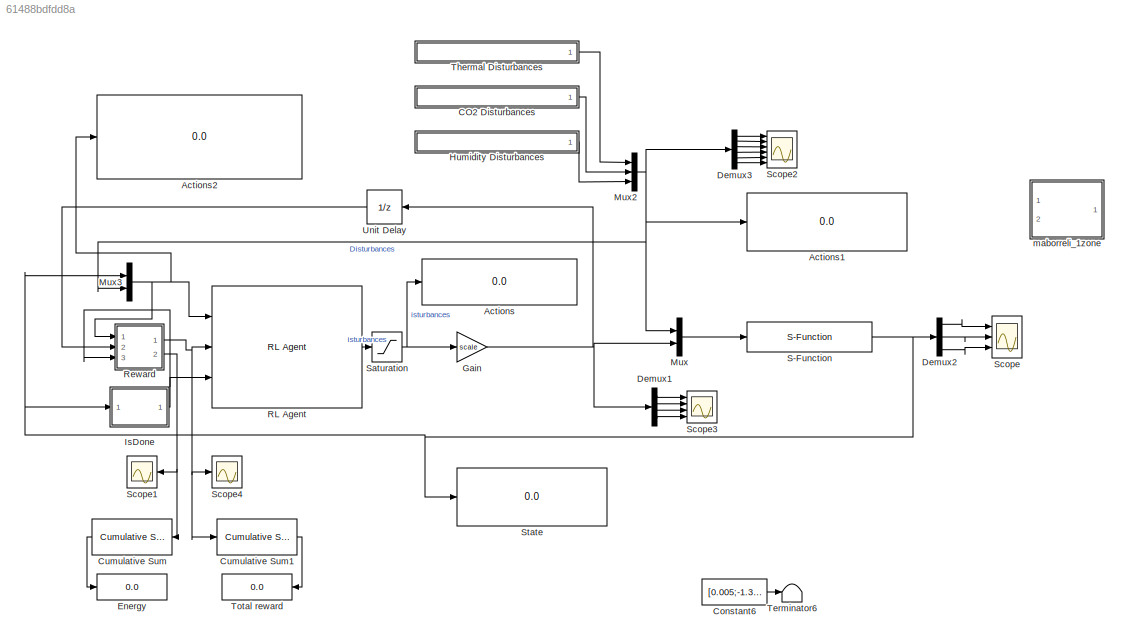
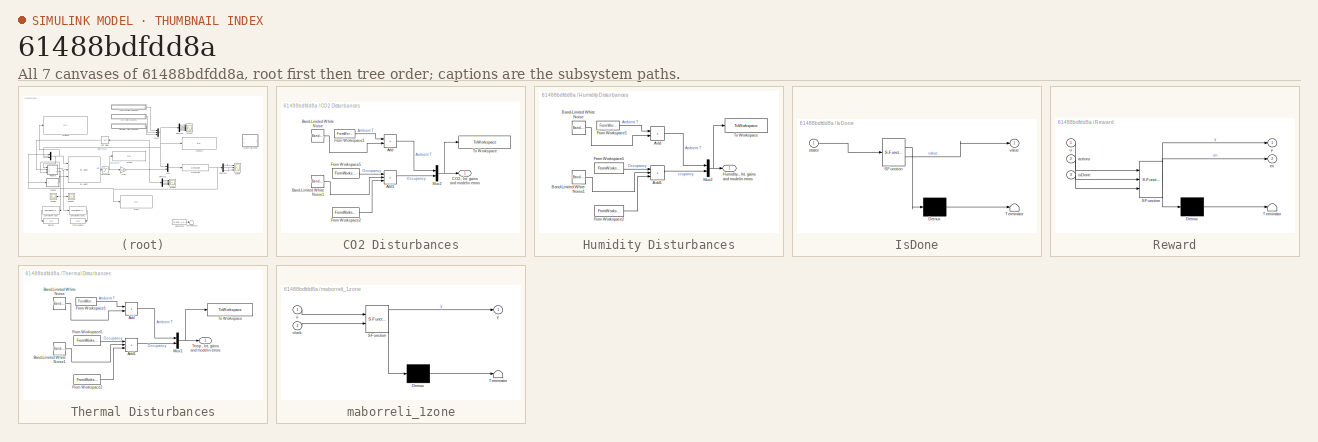
[diagram: thumbnail index - all 7 canvases of the model, root first then tree order]
MODEL slx_61488bdfdd8a
KIND model
CONFIG AbsTol = auto
CONFIG EnableMultiTasking = on
CONFIG FixedStep = 2
CONFIG MaxStep = auto
CONFIG MinStep = auto
CONFIG RelTol = 1e-3
CONFIG SampleTimeConstraint = Unconstrained
CONFIG SolverName = ode45
CONFIG StartTime = 0.0
CONFIG StopTime = 3600*24*3
BLOCK [Display] Actions
  Decimation = 1
  Ports = [1]
BLOCK [Display] Actions1
  Decimation = 1
  Ports = [1]
BLOCK [Display] Actions2
  Decimation = 1
  Ports = [1]
BLOCK [SubSystem] CO2 Disturbances
  Ports = [0, 1]
  RequestExecContextInheritance = off
  TreatAsAtomicUnit = on
BLOCK [Sum] CO2 Disturbances/Add
  IconShape = rectangular
  Ports = [2, 1]
BLOCK [Sum] CO2 Disturbances/Add1
  IconShape = rectangular
  Inputs = +++
  Ports = [3, 1]
BLOCK [Reference] CO2 Disturbances/Band-Limited White Noise  REF=simulink/Sources/Band-Limited
White Noise
  Ports = [0, 1]
  SourceBlock = simulink/Sources/Band-Limited\nWhite Noise
  SourceProductBaseCode = SL
  SourceType = Band-Limited White Noise.
BLOCK [Reference] CO2 Disturbances/Band-Limited White Noise1  REF=simulink/Sources/Band-Limited
White Noise
  Ports = [0, 1]
  SourceBlock = simulink/Sources/Band-Limited\nWhite Noise
  SourceProductBaseCode = SL
  SourceType = Band-Limited White Noise.
BLOCK [Outport] CO2 Disturbances/CO2., Int. gains and modelin errors
BLOCK [FromWorkspace] CO2 Disturbances/From Workspace1
  OutDataTypeStr = double
  SampleTime = Ts
  VariableName = CO2s_struct
  ZeroCross = off
BLOCK [FromWorkspace] CO2 Disturbances/From Workspace2
  OutDataTypeStr = double
  SampleTime = Ts
  VariableName = CO2w_struct
  ZeroCross = off
BLOCK [FromWorkspace] CO2 Disturbances/From Workspace5
  OutDataTypeStr = double
  SampleTime = Ts
  VariableName = CO2gens_struct
  ZeroCross = off
BLOCK [Mux] CO2 Disturbances/Mux2
  DisplayOption = bar
  Inputs = 2
  Ports = [2, 1]
BLOCK [ToWorkspace] CO2 Disturbances/To Workspace
  Commented = on
  FixptAsFi = on
  MaxDataPoints = inf
  Ports = [1]
  SampleTime = id.Delta
  SaveFormat = Timeseries
  VariableName = dist_CO2_forid
BLOCK [Constant] Constant6
  Value = [0.005;-1.332;0.8]
BLOCK [Reference] Cumulative Sum  REF=dspmathops/Cumulative
Sum
  Ports = [1, 1]
  SourceBlock = dspmathops/Cumulative\nSum
  SourceProductBaseCode = DS
  SourceType = Cumulative Sum
  UserDataPersistent = on
BLOCK [Reference] Cumulative Sum1  REF=dspmathops/Cumulative
Sum
  Ports = [1, 1]
  SourceBlock = dspmathops/Cumulative\nSum
  SourceProductBaseCode = DS
  SourceType = Cumulative Sum
  UserDataPersistent = on
BLOCK [Demux] Demux1
  Ports = [1, 4]
BLOCK [Demux] Demux2
  Outputs = 5
  Ports = [1, 5]
BLOCK [Demux] Demux3
  Outputs = 6
  Ports = [1, 6]
BLOCK [Display] Energy
  Decimation = 1
  Ports = [1]
BLOCK [Gain] Gain
  Gain = scale
BLOCK [SubSystem] Humidity Disturbances
  Ports = [0, 1]
  RequestExecContextInheritance = off
  TreatAsAtomicUnit = on
BLOCK [Sum] Humidity Disturbances/Add
  IconShape = rectangular
  Ports = [2, 1]
BLOCK [Sum] Humidity Disturbances/Add1
  IconShape = rectangular
  Inputs = +++
  Ports = [3, 1]
BLOCK [Reference] Humidity Disturbances/Band-Limited White Noise  REF=simulink/Sources/Band-Limited
White Noise
  Ports = [0, 1]
  SourceBlock = simulink/Sources/Band-Limited\nWhite Noise
  SourceProductBaseCode = SL
  SourceType = Band-Limited White Noise.
BLOCK [Reference] Humidity Disturbances/Band-Limited White Noise1  REF=simulink/Sources/Band-Limited
White Noise
  Ports = [0, 1]
  SourceBlock = simulink/Sources/Band-Limited\nWhite Noise
  SourceProductBaseCode = SL
  SourceType = Band-Limited White Noise.
BLOCK [FromWorkspace] Humidity Disturbances/From Workspace1
  OutDataTypeStr = double
  SampleTime = Ts
  VariableName = Hs_struct
  ZeroCross = off
BLOCK [FromWorkspace] Humidity Disturbances/From Workspace2
  OutDataTypeStr = double
  SampleTime = Ts
  VariableName = Hw_struct
  ZeroCross = off
BLOCK [FromWorkspace] Humidity Disturbances/From Workspace5
  OutDataTypeStr = double
  SampleTime = Ts
  VariableName = Hgens_struct
  ZeroCross = off
BLOCK [Outport] Humidity Disturbances/Humidity., Int. gains and modelin errors
BLOCK [Mux] Humidity Disturbances/Mux2
  DisplayOption = bar
  Inputs = 2
  Ports = [2, 1]
BLOCK [ToWorkspace] Humidity Disturbances/To Workspace
  Commented = on
  FixptAsFi = on
  MaxDataPoints = inf
  Ports = [1]
  SampleTime = id.Delta
  SaveFormat = Timeseries
  VariableName = dist_humidities_forid
BLOCK [SubSystem] IsDone
  ErrorFcn = Stateflow.Translate.translate
  PermitHierarchicalResolution = ExplicitOnly
  Ports = [1, 1]
  RequestExecContextInheritance = off
  SFBlockType = MATLAB Function
  SystemSampleTime = Ts2
  TreatAsAtomicUnit = on
BLOCK [Demux] IsDone/ Demux 
  Outputs = 1
  Ports = [1, 1]
BLOCK [S-Function] IsDone/ SFunction 
  EnableBusSupport = on
  FunctionName = sf_sfun
  PortCounts = [1 2]
  Ports = [1, 2]
  SFcnIsStateOwnerBlock = off
  SFunctionDeploymentMode = off
  Tag = Stateflow S-Function 1
BLOCK [Terminator] IsDone/ Terminator 
BLOCK [Inport] IsDone/states
BLOCK [Outport] IsDone/value
BLOCK [Mux] Mux
  DisplayOption = bar
  Inputs = 2
  Ports = [2, 1]
BLOCK [Mux] Mux2
  DisplayOption = bar
  Inputs = 3
  Ports = [3, 1]
BLOCK [Mux] Mux3
  DisplayOption = bar
  Inputs = 2
  Ports = [2, 1]
BLOCK [Reference] RL Agent  REF=rllib/RL Agent
  Ports = [3, 1]
  SourceBlock = rllib/RL Agent
  SourceProductBaseCode = RL
  SourceType = RL Agent
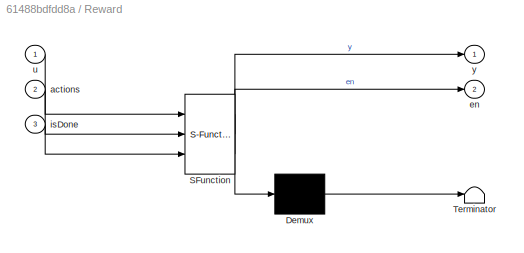
BLOCK [SubSystem] Reward
  ErrorFcn = Stateflow.Translate.translate
  PermitHierarchicalResolution = ExplicitOnly
  Ports = [3, 2]
  RequestExecContextInheritance = off
  SFBlockType = MATLAB Function
  SystemSampleTime = Ts2
  TreatAsAtomicUnit = on
BLOCK [Demux] Reward/ Demux 
  Outputs = 1
  Ports = [1, 1]
BLOCK [S-Function] Reward/ SFunction 
  EnableBusSupport = on
  FunctionName = sf_sfun
  Parameters = CO2_max,beta,high,low,params
  PortCounts = [3 3]
  Ports = [3, 3]
  SFcnIsStateOwnerBlock = off
  SFunctionDeploymentMode = off
  Tag = Stateflow S-Function 2
BLOCK [Terminator] Reward/ Terminator 
BLOCK [Inport] Reward/actions
  Port = 2
BLOCK [Outport] Reward/en
  Port = 2
BLOCK [Inport] Reward/isDone
  Port = 3
BLOCK [Inport] Reward/u
BLOCK [Outport] Reward/y
BLOCK [S-Function] S-Function
  EnableBusSupport = off
  FunctionName = maborrelli_sfunc_1zone_tch
  Parameters = ci,params1,Ts
  Ports = [1, 1]
  SFcnIsStateOwnerBlock = off
  SFunctionDeploymentMode = off
BLOCK [Saturate] Saturation
  LowerLimit = 0
  UpperLimit = 1
BLOCK [Scope] Scope
  Floating = off
  NumInputPorts = 3
  Ports = [3]
  ScopeSpecificationString = Simulink.scopes.TimeScopeBlockCfg('CurrentConfiguration', extmgr.ConfigurationSet(extmgr.Configuration('Core','General UI',true),extmgr.Configuration('Core','Source UI',true),extmgr.Configuration('Sources','WiredSimulink',true,'DataLoggingVariableName','states','DataLoggingSaveFormat','Structure','DataLoggingDecimation','1','DataLoggingDecimateData',true),extmgr.Configuration('Visuals','Time Domai...<+3061ch>
BLOCK [Scope] Scope1
  Floating = off
  NumInputPorts = 1
  Ports = [1]
  ScopeSpecificationString = Simulink.scopes.TimeScopeBlockCfg('CurrentConfiguration', extmgr.ConfigurationSet(extmgr.Configuration('Core','General UI',true),extmgr.Configuration('Core','Source UI',true),extmgr.Configuration('Sources','WiredSimulink',true,'DataLoggingVariableName','ScopeData1','DataLoggingSaveFormat','StructureWithTime','DataLoggingDecimation','1','DataLoggingDecimateData',true),extmgr.Configuration('Visuals'...<+1806ch>
BLOCK [Scope] Scope2
  Floating = off
  NumInputPorts = 6
  Ports = [6]
  ScopeSpecificationString = Simulink.scopes.TimeScopeBlockCfg('CurrentConfiguration', extmgr.ConfigurationSet(extmgr.Configuration('Core','General UI',true),extmgr.Configuration('Core','Source UI',true),extmgr.Configuration('Sources','WiredSimulink',true,'DataLoggingVariableName','ScopeData1','DataLoggingSaveFormat','StructureWithTime','DataLoggingDecimation','1','DataLoggingDecimateData',true),extmgr.Configuration('Visuals'...<+5121ch>
BLOCK [Scope] Scope3
  Floating = off
  NumInputPorts = 4
  Ports = [4]
  ScopeSpecificationString = Simulink.scopes.TimeScopeBlockCfg('CurrentConfiguration', extmgr.ConfigurationSet(extmgr.Configuration('Core','General UI',true),extmgr.Configuration('Core','Source UI',true),extmgr.Configuration('Sources','WiredSimulink',true,'DataLoggingVariableName','inputs','DataLoggingSaveFormat','StructureWithTime','DataLoggingDecimation','1','DataLoggingDecimateData',true),extmgr.Configuration('Visuals','Ti...<+3876ch>
BLOCK [Scope] Scope4
  Floating = off
  NumInputPorts = 1
  Ports = [1]
  ScopeSpecificationString = Simulink.scopes.TimeScopeBlockCfg('CurrentConfiguration', extmgr.ConfigurationSet(extmgr.Configuration('Core','General UI',true),extmgr.Configuration('Core','Source UI',true),extmgr.Configuration('Sources','WiredSimulink',true,'DataLoggingVariableName','T3','DataLoggingSaveFormat','StructureWithTime','DataLoggingDecimation','1','DataLoggingDecimateData',true),extmgr.Configuration('Visuals','Time D...<+1787ch>
BLOCK [Display] State
  Decimation = 1
  Ports = [1]
BLOCK [Terminator] Terminator6
BLOCK [SubSystem] Thermal Disturbances
  Ports = [0, 1]
  RequestExecContextInheritance = off
  TreatAsAtomicUnit = on
BLOCK [Sum] Thermal Disturbances/Add
  IconShape = rectangular
  Ports = [2, 1]
BLOCK [Sum] Thermal Disturbances/Add1
  IconShape = rectangular
  Inputs = +++
  Ports = [3, 1]
BLOCK [Reference] Thermal Disturbances/Band-Limited White Noise  REF=simulink/Sources/Band-Limited
White Noise
  Ports = [0, 1]
  SourceBlock = simulink/Sources/Band-Limited\nWhite Noise
  SourceProductBaseCode = SL
  SourceType = Band-Limited White Noise.
BLOCK [Reference] Thermal Disturbances/Band-Limited White Noise1  REF=simulink/Sources/Band-Limited
White Noise
  Ports = [0, 1]
  SourceBlock = simulink/Sources/Band-Limited\nWhite Noise
  SourceProductBaseCode = SL
  SourceType = Band-Limited White Noise.
BLOCK [FromWorkspace] Thermal Disturbances/From Workspace1
  OutDataTypeStr = double
  SampleTime = Ts
  VariableName = Ts_struct
  ZeroCross = off
BLOCK [FromWorkspace] Thermal Disturbances/From Workspace2
  OutDataTypeStr = double
  SampleTime = Ts
  VariableName = w_struct
  ZeroCross = off
BLOCK [FromWorkspace] Thermal Disturbances/From Workspace5
  OutDataTypeStr = double
  SampleTime = Ts
  VariableName = Pds_struct
  ZeroCross = off
BLOCK [Mux] Thermal Disturbances/Mux2
  DisplayOption = bar
  Inputs = 2
  Ports = [2, 1]
BLOCK [Outport] Thermal Disturbances/Temp., Int. gains and modelin errors
BLOCK [ToWorkspace] Thermal Disturbances/To Workspace
  Commented = on
  FixptAsFi = on
  MaxDataPoints = inf
  Ports = [1]
  SampleTime = id.Delta
  SaveFormat = Timeseries
  VariableName = dist_temperatures_forid
BLOCK [Display] Total reward
  Decimation = 1
  Ports = [1]
BLOCK [UnitDelay] Unit Delay
  HasFrameUpgradeWarning = on
  SampleTime = Ts2
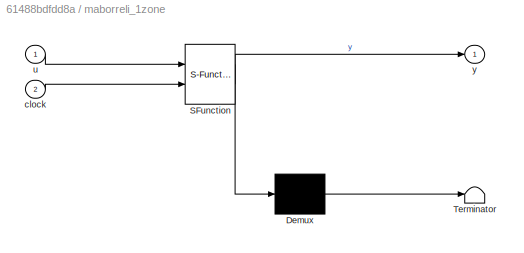
BLOCK [SubSystem] maborreli_1zone
  Commented = on
  ErrorFcn = Stateflow.Translate.translate
  PermitHierarchicalResolution = ExplicitOnly
  Ports = [2, 1]
  RequestExecContextInheritance = off
  SFBlockType = MATLAB Function
  SystemSampleTime = Ts
  TreatAsAtomicUnit = on
BLOCK [Demux] maborreli_1zone/ Demux 
  Outputs = 1
  Ports = [1, 1]
BLOCK [S-Function] maborreli_1zone/ SFunction 
  EnableBusSupport = on
  FunctionName = sf_sfun
  Parameters = Ts,ci,params1
  PortCounts = [2 2]
  Ports = [2, 2]
  SFcnIsStateOwnerBlock = off
  SFunctionDeploymentMode = off
  Tag = Stateflow S-Function 3
BLOCK [Terminator] maborreli_1zone/ Terminator 
BLOCK [Inport] maborreli_1zone/clock
  Port = 2
BLOCK [Inport] maborreli_1zone/u
BLOCK [Outport] maborreli_1zone/y
LINE CO2 Disturbances/Add1:1 -> CO2 Disturbances/Mux2:2
LINE CO2 Disturbances/Add:1 -> CO2 Disturbances/Mux2:1
LINE CO2 Disturbances/Band-Limited White Noise1:1 -> CO2 Disturbances/Add1:2
LINE CO2 Disturbances/Band-Limited White Noise:1 -> CO2 Disturbances/Add:2
LINE CO2 Disturbances/From Workspace1:1 -> CO2 Disturbances/Add:1
LINE CO2 Disturbances/From Workspace2:1 -> CO2 Disturbances/Add1:3
LINE CO2 Disturbances/From Workspace5:1 -> CO2 Disturbances/Add1:1
NET CO2 Disturbances/Mux2:1 -> CO2 Disturbances/CO2., Int. gains and modelin errors:1, CO2 Disturbances/To Workspace:1
LINE CO2 Disturbances:1 -> Mux2:2
LINE Constant6:1 -> Terminator6:1
LINE Cumulative Sum1:1 -> Total reward:1
LINE Cumulative Sum:1 -> Energy:1
LINE Demux1:1 -> Scope3:1
LINE Demux1:2 -> Scope3:2
LINE Demux1:3 -> Scope3:3
LINE Demux1:4 -> Scope3:4
LINE Demux2:1 -> Scope:1
LINE Demux2:3 -> Scope:2
LINE Demux2:5 -> Scope:3
LINE Demux3:1 -> Scope2:1
LINE Demux3:2 -> Scope2:2
LINE Demux3:3 -> Scope2:3
LINE Demux3:4 -> Scope2:4
LINE Demux3:5 -> Scope2:5
LINE Demux3:6 -> Scope2:6
NET Gain:1 -> Demux1:1, Mux:2, Unit Delay:1
LINE Humidity Disturbances/Add1:1 -> Humidity Disturbances/Mux2:2
LINE Humidity Disturbances/Add:1 -> Humidity Disturbances/Mux2:1
LINE Humidity Disturbances/Band-Limited White Noise1:1 -> Humidity Disturbances/Add1:2
LINE Humidity Disturbances/Band-Limited White Noise:1 -> Humidity Disturbances/Add:2
LINE Humidity Disturbances/From Workspace1:1 -> Humidity Disturbances/Add:1
LINE Humidity Disturbances/From Workspace2:1 -> Humidity Disturbances/Add1:3
LINE Humidity Disturbances/From Workspace5:1 -> Humidity Disturbances/Add1:1
NET Humidity Disturbances/Mux2:1 -> Humidity Disturbances/Humidity., Int. gains and modelin errors:1, Humidity Disturbances/To Workspace:1
LINE Humidity Disturbances:1 -> Mux2:3
NET IsDone:1 -> RL Agent:3, Reward:3
NET Mux2:1 -> Actions1:1, Demux3:1, Mux3:2, Mux:1
NET Mux3:1 -> Actions2:1, RL Agent:1, Reward:1
LINE Mux:1 -> S-Function:1
LINE RL Agent:1 -> Saturation:1
NET Reward:1 -> Cumulative Sum1:1, RL Agent:2, Scope4:1
NET Reward:2 -> Cumulative Sum:1, Scope1:1
NET S-Function:1 -> Demux2:1, IsDone:1, Mux3:1, State:1
NET Saturation:1 -> Actions:1, Gain:1
LINE Thermal Disturbances/Add1:1 -> Thermal Disturbances/Mux2:2
LINE Thermal Disturbances/Add:1 -> Thermal Disturbances/Mux2:1
LINE Thermal Disturbances/Band-Limited White Noise1:1 -> Thermal Disturbances/Add1:2
LINE Thermal Disturbances/Band-Limited White Noise:1 -> Thermal Disturbances/Add:2
LINE Thermal Disturbances/From Workspace1:1 -> Thermal Disturbances/Add:1
LINE Thermal Disturbances/From Workspace2:1 -> Thermal Disturbances/Add1:3
LINE Thermal Disturbances/From Workspace5:1 -> Thermal Disturbances/Add1:1
NET Thermal Disturbances/Mux2:1 -> Thermal Disturbances/Temp., Int. gains and modelin errors:1, Thermal Disturbances/To Workspace:1
LINE Thermal Disturbances:1 -> Mux2:1
LINE Unit Delay:1 -> Reward:2
note: NET lines group one-source signal fan-out (src -> all destinations, sorted); 1:1 wires keep LINE
CHART IsDone states=1 transitions=1
  STATE_LABEL 'eML_blk_kernel()'
  STATE_LABEL 'SCRIPT:\nfunction value = fcn(states)\n low = -0;\n max = 50;\n value = 0; \n %disp(length(block.InputPort(1).Data))\n for i=1:length(states)\n     %disp(i)\n     if i == 3\n         break\n     end\n     if states(3)>(3200*1e-6)\n         value = 1;\n         break\n     end\n     aux = states(i);\n     %disp(aux)\n     if (aux < low || aux > max) \n        %disp(abs(aux - low))\n        value = 1;\n        break\n  ...<+30ch>'
CHART Reward states=1 transitions=1
  STATE_LABEL 'eML_blk_kernel()'
  STATE_LABEL 'SCRIPT:\nfunction [y, en] = reward(u ,  actions, isDone, low, high, beta, params, CO2_max)\n ms = actions(1);\n Dt = actions(2);\n Dth = actions(3);\n delta = actions(4);\n reward = 0;\n cp = params.cp;\n eta = params.eta;\n kf = params.kf;\n eta_h = params.eta_h;\n %mr = delta*u_1(1)+(1-delta)*u_1(4);\n %Añadir energía:\n e = (kf*(ms)^2)/1000;\n e = e + ((-cp/eta)*ms*(Dt))/1000;\n for i=1:1\n     aux = u(1);\n   ...<+912ch>'
CHART maborreli_1zone states=1 transitions=1
  STATE_LABEL 'eML_blk_kernel()'
  STATE_LABEL 'SCRIPT:\nfunction y = fcn(u,params1, ci, Ts, clock)\nST = Ts;\nparams = params1;\nglobal states;\ndT = [0;0];\ndelta=u(5);\nif clock == 0\n    dT = ci;\nelse\n    x = states;\n    dT(1)=x(1)+(ST*u(3)*params.cp*((delta*x(1)+(1-delta)*u(1)+u(4))-x(1))+ ST*(x(2)-x(1))/params.R+...\n        ST*(u(1)-x(1))/params.Roa+ST*u(2))/params.C1;\n    dT(2)=x(2)+ST*(x(1)-x(2))/params.R/params.C2;\nend\nstates = dT;\ny = dT;\n'
CHART  states=0 transitions=0
CHART  states=0 transitions=0
CHART  states=0 transitions=0
